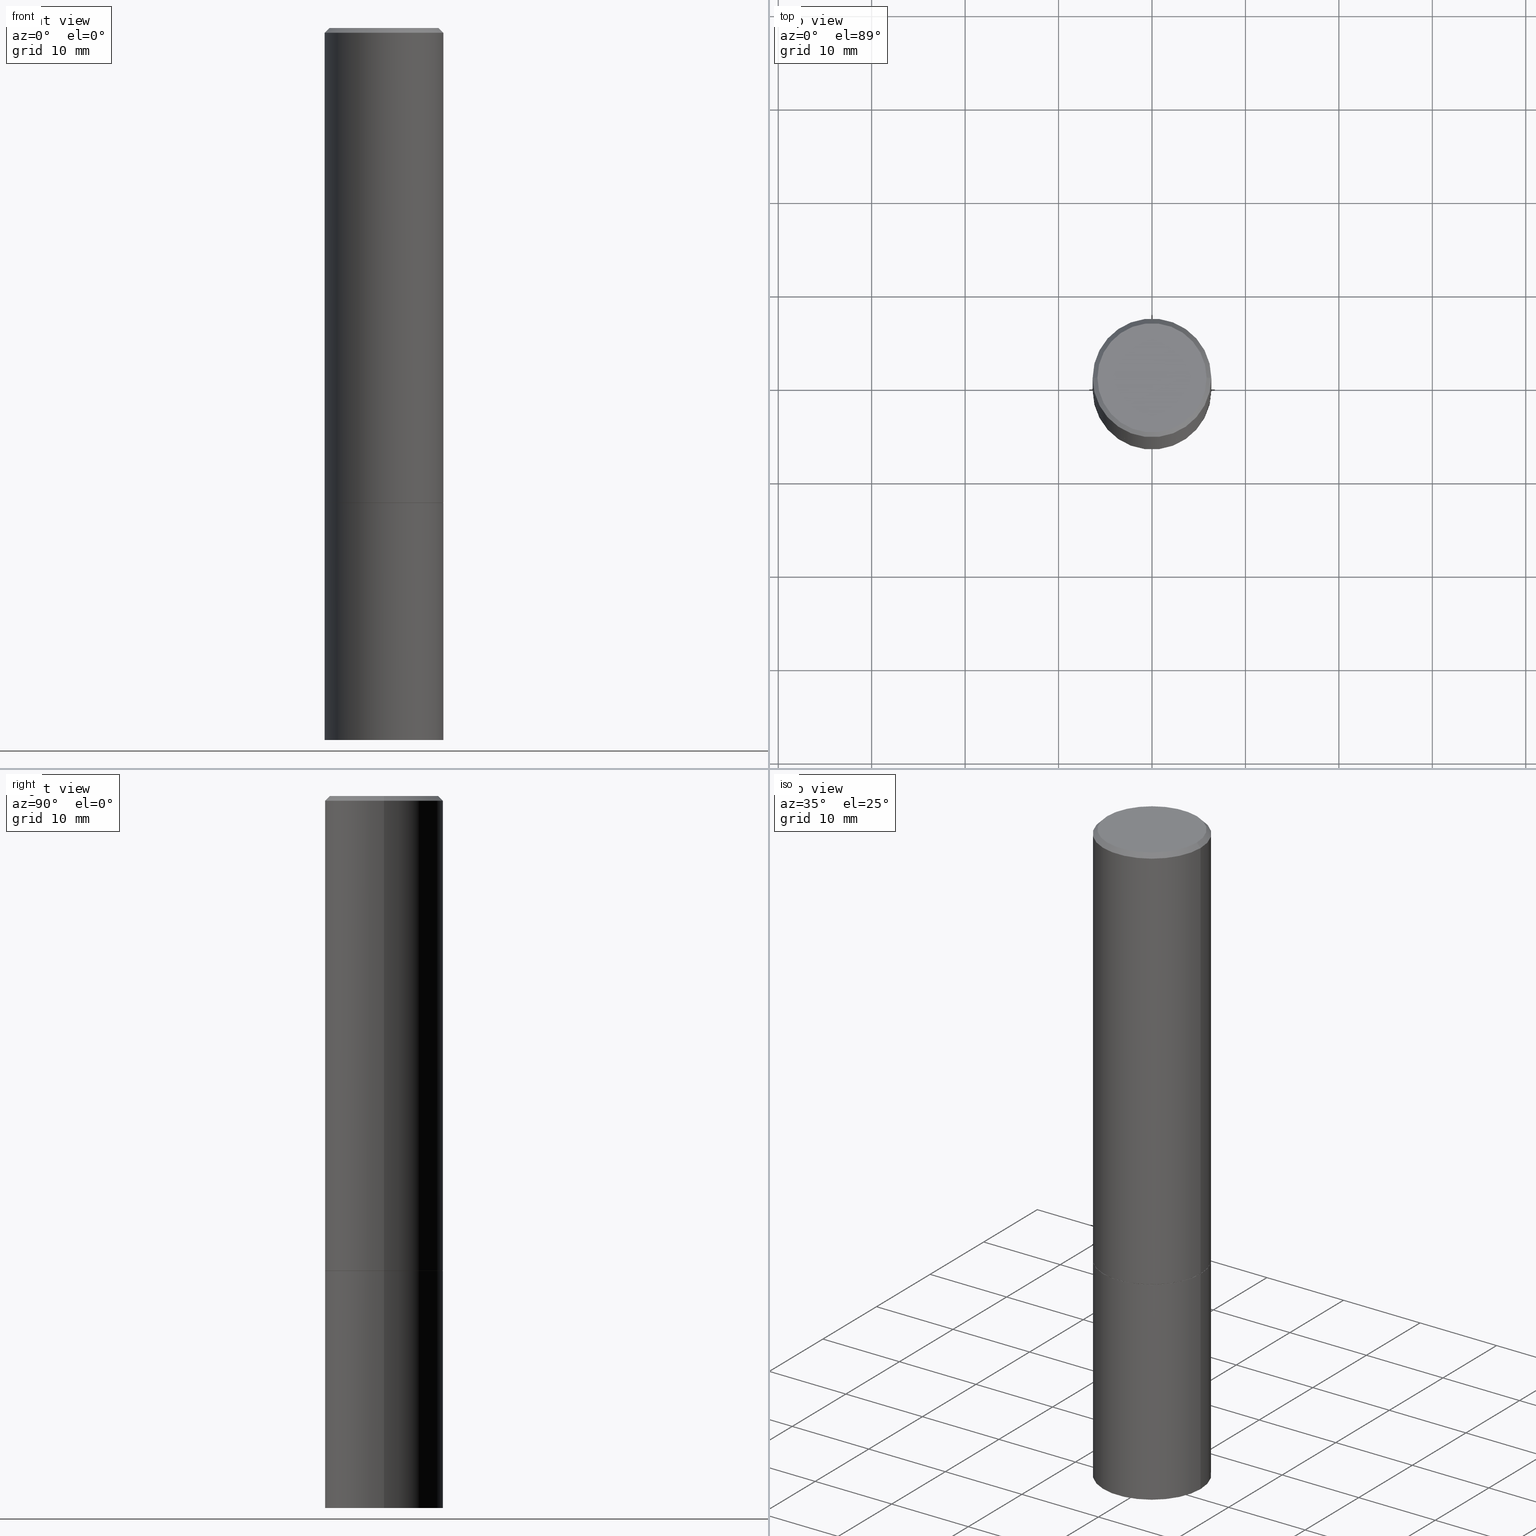
[diagram: canonical four-view strip — front | top / right | iso, engineering-drawing reading convention]
A machine part, canonical four-view strip (front | top / right | iso — engineering-drawing reading convention). The complete STEP part file that produces these views, byte-faithful:
ISO-10303-21;
HEADER;
FILE_DESCRIPTION (( 'STEP AP203' ),
    '1' );
FILE_NAME ('38513.STEP',
    '2024-02-27T23:11:34',
    ( '' ),
    ( '' ),
    'SwSTEP 2.0',
    'SolidWorks 2023',
    '' );
FILE_SCHEMA (( 'CONFIG_CONTROL_DESIGN' ));
ENDSEC;

DATA;
#1 = DIRECTION ( 'NONE',  ( 1.000000000000000000, -6.982962677686266711E-15, 4.876176775795935793E-29 ) ) ;
#2 = DIRECTION ( 'NONE',  ( -2.445468806185136877E-29, 3.491481338843145188E-15, 1.000000000000000000 ) ) ;
#3 = CIRCLE ( 'NONE', #194, 0.2500000000000000000 ) ;
#4 = CARTESIAN_POINT ( 'NONE',  ( 0.2500000000000000000, -8.725211865769015625E-15, -1.999000000000000110 ) ) ;
#5 = PRODUCT_DEFINITION_SHAPE ( 'NONE', 'NONE',  #158 ) ;
#6 = CARTESIAN_POINT ( 'NONE',  ( 0.2499999999999996947, -1.784954126219744217E-15, -0.02000000000000009756 ) ) ;
#7 = CARTESIAN_POINT ( 'NONE',  ( -0.2489999999999999991, -5.208412811295420884E-15, -2.000000000000000444 ) ) ;
#8 = ORIENTED_EDGE ( 'NONE', *, *, #275, .F. ) ;
#9 = MANIFOLD_SOLID_BREP ( 'Body-Move/Copy2[1]', #114 ) ;
#10 = DIRECTION ( 'NONE',  ( 1.000000000000000000, -6.982962677686262766E-15, 0.000000000000000000 ) ) ;
#11 = DIRECTION ( 'NONE',  ( 1.000000000000000000, -6.982962677686266711E-15, 0.000000000000000000 ) ) ;
#12 = PERSON_AND_ORGANIZATION_ROLE ( 'design_supplier' ) ;
#13 = ORIENTED_EDGE ( 'NONE', *, *, #253, .F. ) ;
#14 = CALENDAR_DATE ( 2024, 27, 2 ) ;
#15 = EDGE_LOOP ( 'NONE', ( #137, #242 ) ) ;
#16 = PERSON_AND_ORGANIZATION ( #181, #176 ) ;
#17 = ORIENTED_EDGE ( 'NONE', *, *, #111, .T. ) ;
#18 = COORDINATED_UNIVERSAL_TIME_OFFSET ( 5, 0, .BEHIND. ) ;
#19 = ORIENTED_EDGE ( 'NONE', *, *, #121, .F. ) ;
#20 = EDGE_CURVE ( 'NONE', #270, #74, #311, .T. ) ;
#21 = DIRECTION ( 'NONE',  ( -2.445468806185136597E-29, 3.491481338843145583E-15, 1.000000000000000000 ) ) ;
#22 = CLOSED_SHELL ( 'NONE', ( #288, #182, #88, #263, #55, #309, #116, #213 ) ) ;
#23 = CC_DESIGN_APPROVAL ( #362, ( #251 ) ) ;
#24 = DIRECTION ( 'NONE',  ( -2.445468806185136597E-29, 3.491481338843145583E-15, 1.000000000000000000 ) ) ;
#25 = CARTESIAN_POINT ( 'NONE',  ( 4.890937612370273754E-29, -6.982962677686291954E-15, -2.000000000000000444 ) ) ;
#26 = CARTESIAN_POINT ( 'NONE',  ( 0.2489999999999999991, -8.721720384430172617E-15, -2.000000000000000444 ) ) ;
#27 = CIRCLE ( 'NONE', #294, 0.2299999999999997047 ) ;
#28 = APPROVAL ( #350, 'UNSPECIFIED' ) ;
#29 = CARTESIAN_POINT ( 'NONE',  ( 1.745740669421639647E-15, 0.2499999999999895084, -3.000000000000001332 ) ) ;
#30 = LENGTH_MEASURE_WITH_UNIT ( LENGTH_MEASURE( 0.02539999999999999897 ), #266 );
#31 = CARTESIAN_POINT ( 'NONE',  ( 0.2500000000000000000, -1.222018468595100303E-14, -3.000000000000000444 ) ) ;
#32 = AXIS2_PLACEMENT_3D ( 'NONE', #70, #68, #102 ) ;
#33 = LOCAL_TIME ( 18, 11, 34.00000000000000000, #131 ) ;
#34 = CARTESIAN_POINT ( 'NONE',  ( 4.890937612370273754E-29, -6.982962677686291954E-15, -2.000000000000000444 ) ) ;
#35 = DESIGN_CONTEXT ( 'detailed design', #355, 'design' ) ;
#36 = DIRECTION ( 'NONE',  ( -2.445468806185136597E-29, 3.491481338843145583E-15, 1.000000000000000000 ) ) ;
#37 = CARTESIAN_POINT ( 'NONE',  ( 4.890937612370273754E-29, -6.982962677686291954E-15, -2.000000000000000444 ) ) ;
#38 = ORIENTED_EDGE ( 'NONE', *, *, #224, .T. ) ;
#39 = CIRCLE ( 'NONE', #323, 0.2500000000000000000 ) ;
#40 = APPROVAL_PERSON_ORGANIZATION ( #46, #28, #297 ) ;
#41 = PERSON_AND_ORGANIZATION ( #181, #176 ) ;
#42 = ORIENTED_EDGE ( 'NONE', *, *, #20, .F. ) ;
#43 = EDGE_CURVE ( 'NONE', #125, #349, #145, .T. ) ;
#44 = PERSON_AND_ORGANIZATION ( #181, #176 ) ;
#45 = ORIENTED_EDGE ( 'NONE', *, *, #111, .F. ) ;
#46 = PERSON_AND_ORGANIZATION ( #181, #176 ) ;
#47 = ORIENTED_EDGE ( 'NONE', *, *, #50, .F. ) ;
#48 = AXIS2_PLACEMENT_3D ( 'NONE', #174, #257, #337 ) ;
#49 = DATE_AND_TIME ( #299, #172 ) ;
#50 = EDGE_CURVE ( 'NONE', #296, #71, #54, .T. ) ;
#51 = EDGE_LOOP ( 'NONE', ( #100, #300, #354, #188 ) ) ;
#52 = ORIENTED_EDGE ( 'NONE', *, *, #50, .T. ) ;
#53 = DIRECTION ( 'NONE',  ( 0.7071067811865232589, -2.468850131082003836E-15, 0.7071067811865715536 ) ) ;
#54 = CIRCLE ( 'NONE', #243, 0.2299999999999997047 ) ;
#55 = ADVANCED_FACE ( 'NONE', ( #79 ), #113, .T. ) ;
#56 = CARTESIAN_POINT ( 'NONE',  ( 4.890937612370273754E-29, -6.982962677686291954E-15, -2.000000000000000444 ) ) ;
#57 = FACE_OUTER_BOUND ( 'NONE', #154, .T. ) ;
#58 = DIRECTION ( 'NONE',  ( 2.438088387897960049E-29, -3.491481338843145188E-15, -1.000000000000000000 ) ) ;
#59 = CARTESIAN_POINT ( 'NONE',  ( 4.888492143564088712E-29, -6.979471196347448158E-15, -1.999000000000000110 ) ) ;
#60 = DIRECTION ( 'NONE',  ( 2.438088387897960049E-29, -3.491481338843145188E-15, -1.000000000000000000 ) ) ;
#61 = CC_DESIGN_PERSON_AND_ORGANIZATION_ASSIGNMENT ( #269, #12, ( #97 ) ) ;
#62 = PRODUCT ( '38513', '38513', '', ( #295 ) ) ;
#63 = DIRECTION ( 'NONE',  ( 0.7071067811865461294, -7.319954787623251312E-15, -0.7071067811865489050 ) ) ;
#64 = AXIS2_PLACEMENT_3D ( 'NONE', #59, #173, #89 ) ;
#65 = FACE_OUTER_BOUND ( 'NONE', #81, .T. ) ;
#66 = FACE_OUTER_BOUND ( 'NONE', #191, .T. ) ;
#67 = ORIENTED_EDGE ( 'NONE', *, *, #159, .F. ) ;
#68 = DIRECTION ( 'NONE',  ( 0.000000000000000000, 0.000000000000000000, 1.000000000000000000 ) ) ;
#69 = CIRCLE ( 'NONE', #64, 0.2500000000000000000 ) ;
#70 = CARTESIAN_POINT ( 'NONE',  ( 0.000000000000000000, 0.000000000000000000, 0.000000000000000000 ) ) ;
#71 = VERTEX_POINT ( 'NONE', #226 ) ;
#72 = ADVANCED_FACE ( 'NONE', ( #222 ), #361, .T. ) ;
#73 = APPROVAL_STATUS ( 'not_yet_approved' ) ;
#74 = VERTEX_POINT ( 'NONE', #333 ) ;
#75 = APPLICATION_PROTOCOL_DEFINITION ( 'international standard', 'config_control_design', 1994, #355 ) ;
#76 = CARTESIAN_POINT ( 'NONE',  ( 7.306959900346538153E-46, -1.043240219266313067E-31, -2.987958743070287587E-17 ) ) ;
#77 = EDGE_CURVE ( 'NONE', #331, #302, #164, .T. ) ;
#78 = APPROVAL_ROLE ( '' ) ;
#79 = FACE_OUTER_BOUND ( 'NONE', #351, .T. ) ;
#80 = CIRCLE ( 'NONE', #236, 0.2499999999999996947 ) ;
#81 = EDGE_LOOP ( 'NONE', ( #52, #356 ) ) ;
#82 = APPLICATION_CONTEXT ( 'configuration controlled 3d designs of mechanical parts and assemblies' ) ;
#83 = DIRECTION ( 'NONE',  ( -2.438088387897960049E-29, 3.491481338843145188E-15, 1.000000000000000000 ) ) ;
#84 = CARTESIAN_POINT ( 'NONE',  ( 4.890937612370297681E-31, -6.982962677686324889E-17, -0.02000000000000009756 ) ) ;
#85 = AXIS2_PLACEMENT_3D ( 'NONE', #56, #171, #335 ) ;
#86 = CARTESIAN_POINT ( 'NONE',  ( -0.2489999999999999991, -5.213711265643642498E-15, -2.000000000000000444 ) ) ;
#87 = DIRECTION ( 'NONE',  ( -2.445468806185136597E-29, 3.491481338843145583E-15, 1.000000000000000000 ) ) ;
#88 = ADVANCED_FACE ( 'NONE', ( #57 ), #334, .T. ) ;
#89 = DIRECTION ( 'NONE',  ( 1.000000000000000000, -6.982962677686266711E-15, 0.000000000000000000 ) ) ;
#90 = AXIS2_PLACEMENT_3D ( 'NONE', #37, #36, #93 ) ;
#91 = AXIS2_PLACEMENT_3D ( 'NONE', #314, #60, #119 ) ;
#92 = CC_DESIGN_DATE_AND_TIME_ASSIGNMENT ( #216, #165, ( #158 ) ) ;
#93 = DIRECTION ( 'NONE',  ( 1.000000000000000000, -6.982962677686266711E-15, 0.000000000000000000 ) ) ;
#94 = LINE ( 'NONE', #232, #170 ) ;
#95 = DIRECTION ( 'NONE',  ( -2.445468806185136597E-29, 3.491481338843145583E-15, 1.000000000000000000 ) ) ;
#96 = AXIS2_PLACEMENT_3D ( 'NONE', #115, #87, #1 ) ;
#97 = PRODUCT_DEFINITION_FORMATION_WITH_SPECIFIED_SOURCE ( 'ANY', '', #62, .NOT_KNOWN. ) ;
#98 = DIRECTION ( 'NONE',  ( -2.445468806185136597E-29, 3.491481338843145583E-15, 1.000000000000000000 ) ) ;
#99 = DATE_AND_TIME ( #271, #324 ) ;
#100 = ORIENTED_EDGE ( 'NONE', *, *, #210, .F. ) ;
#101 = AXIS2_PLACEMENT_3D ( 'NONE', #117, #332, #259 ) ;
#102 = DIRECTION ( 'NONE',  ( 1.000000000000000000, 0.000000000000000000, 0.000000000000000000 ) ) ;
#103 = LOCAL_TIME ( 18, 11, 34.00000000000000000, #18 ) ;
#104 = ORIENTED_EDGE ( 'NONE', *, *, #121, .T. ) ;
#105 = SHAPE_DEFINITION_REPRESENTATION ( #5, #167 ) ;
#106 = ORIENTED_EDGE ( 'NONE', *, *, #161, .F. ) ;
#107 = DIRECTION ( 'NONE',  ( -2.445468806185136597E-29, 3.491481338843145583E-15, 1.000000000000000000 ) ) ;
#108 = ORIENTED_EDGE ( 'NONE', *, *, #128, .F. ) ;
#109 = AXIS2_PLACEMENT_3D ( 'NONE', #199, #364, #201 ) ;
#110 = DIRECTION ( 'NONE',  ( -2.445468806185136597E-29, 3.491481338843145583E-15, 1.000000000000000000 ) ) ;
#111 = EDGE_CURVE ( 'NONE', #160, #219, #227, .T. ) ;
#112 = DIRECTION ( 'NONE',  ( -2.445468806185136597E-29, 3.491481338843145583E-15, 1.000000000000000000 ) ) ;
#113 = CYLINDRICAL_SURFACE ( 'NONE', #155, 0.2499999999999998612 ) ;
#114 = CLOSED_SHELL ( 'NONE', ( #197, #72, #240, #189 ) ) ;
#115 = CARTESIAN_POINT ( 'NONE',  ( 0.000000000000000000, 0.000000000000000000, 0.000000000000000000 ) ) ;
#116 = ADVANCED_FACE ( 'NONE', ( #202 ), #252, .F. ) ;
#117 = CARTESIAN_POINT ( 'NONE',  ( 4.890937612370297681E-31, -6.982962677686324889E-17, -0.02000000000000009756 ) ) ;
#118 = EDGE_CURVE ( 'NONE', #169, #219, #126, .T. ) ;
#119 = DIRECTION ( 'NONE',  ( -1.000000000000000000, 6.982962677686265922E-15, -4.876176775795935793E-29 ) ) ;
#120 = AXIS2_PLACEMENT_3D ( 'NONE', #264, #95, #315 ) ;
#121 = EDGE_CURVE ( 'NONE', #160, #239, #39, .T. ) ;
#122 = FACE_OUTER_BOUND ( 'NONE', #326, .T. ) ;
#123 = PLANE ( 'NONE',  #249 ) ;
#124 = CARTESIAN_POINT ( 'NONE',  ( 7.306959900346538153E-46, -1.043240219266313067E-31, -2.987958743070287587E-17 ) ) ;
#125 = VERTEX_POINT ( 'NONE', #26 ) ;
#126 = CIRCLE ( 'NONE', #109, 0.2499999999999996947 ) ;
#127 = CARTESIAN_POINT ( 'NONE',  ( 0.2500000000000000000, -1.745740669421566678E-15, 1.219044193948983948E-29 ) ) ;
#128 = EDGE_CURVE ( 'NONE', #125, #239, #255, .T. ) ;
#129 = COORDINATED_UNIVERSAL_TIME_OFFSET ( 5, 0, .BEHIND. ) ;
#130 = DIRECTION ( 'NONE',  ( -2.445468806185136597E-29, 3.491481338843145583E-15, 1.000000000000000000 ) ) ;
#131 = COORDINATED_UNIVERSAL_TIME_OFFSET ( 5, 0, .BEHIND. ) ;
#132 = ORIENTED_EDGE ( 'NONE', *, *, #344, .F. ) ;
#133 = DATE_AND_TIME ( #14, #103 ) ;
#134 = DIRECTION ( 'NONE',  ( 1.000000000000000000, -6.982962677686266711E-15, 0.000000000000000000 ) ) ;
#135 = ORIENTED_EDGE ( 'NONE', *, *, #185, .T. ) ;
#136 = CC_DESIGN_PERSON_AND_ORGANIZATION_ASSIGNMENT ( #41, #192, ( #158 ) ) ;
#137 = ORIENTED_EDGE ( 'NONE', *, *, #43, .F. ) ;
#138 =( GEOMETRIC_REPRESENTATION_CONTEXT ( 3 ) GLOBAL_UNCERTAINTY_ASSIGNED_CONTEXT ( ( #206 ) ) GLOBAL_UNIT_ASSIGNED_CONTEXT ( ( #262, #260, #327 ) ) REPRESENTATION_CONTEXT ( 'NONE', 'WORKASPACE' ) );
#139 = DIRECTION ( 'NONE',  ( -2.445468806185136597E-29, 3.491481338843145583E-15, 1.000000000000000000 ) ) ;
#140 = LOCAL_TIME ( 18, 11, 34.00000000000000000, #238 ) ;
#141 = EDGE_CURVE ( 'NONE', #74, #270, #256, .T. ) ;
#142 = CARTESIAN_POINT ( 'NONE',  ( -0.2499999999999998612, 1.776356839400249479E-15, -1.229733772563725745E-29 ) ) ;
#143 = CARTESIAN_POINT ( 'NONE',  ( 4.888492143564088712E-29, -6.979471196347448158E-15, -1.999000000000000110 ) ) ;
#144 = CARTESIAN_POINT ( 'NONE',  ( 0.000000000000000000, 0.000000000000000000, 0.000000000000000000 ) ) ;
#145 = CIRCLE ( 'NONE', #359, 0.2489999999999999991 ) ;
#146 = LINE ( 'NONE', #86, #250 ) ;
#147 = PLANE ( 'NONE',  #91 ) ;
#148 = AXIS2_PLACEMENT_3D ( 'NONE', #237, #233, #179 ) ;
#149 = CARTESIAN_POINT ( 'NONE',  ( -0.2500000000000000000, 1.776356839400250465E-15, -1.229733772563726445E-29 ) ) ;
#150 = CC_DESIGN_DATE_AND_TIME_ASSIGNMENT ( #325, #157, ( #251 ) ) ;
#151 = CARTESIAN_POINT ( 'NONE',  ( -0.2500000000000000000, -6.952346507707613689E-15, -3.000000000000000444 ) ) ;
#152 = ORIENTED_EDGE ( 'NONE', *, *, #234, .F. ) ;
#153 = CARTESIAN_POINT ( 'NONE',  ( 0.2499999999999998612, -1.745740669421565692E-15, 1.219044193948983248E-29 ) ) ;
#154 = EDGE_LOOP ( 'NONE', ( #235, #168, #358, #152 ) ) ;
#155 = AXIS2_PLACEMENT_3D ( 'NONE', #144, #110, #310 ) ;
#156 = APPROVAL_PERSON_ORGANIZATION ( #187, #341, #78 ) ;
#157 = DATE_TIME_ROLE ( 'classification_date' ) ;
#158 = PRODUCT_DEFINITION ( 'UNKNOWN', '', #97, #35 ) ;
#159 = EDGE_CURVE ( 'NONE', #349, #160, #146, .T. ) ;
#160 = VERTEX_POINT ( 'NONE', #282 ) ;
#161 = EDGE_CURVE ( 'NONE', #219, #169, #80, .T. ) ;
#162 = PERSON_AND_ORGANIZATION_ROLE ( 'design_owner' ) ;
#163 = ORIENTED_EDGE ( 'NONE', *, *, #20, .T. ) ;
#164 = CIRCLE ( 'NONE', #48, 0.2500000000000000000 ) ;
#165 = DATE_TIME_ROLE ( 'creation_date' ) ;
#166 = CARTESIAN_POINT ( 'NONE',  ( 4.890937612370273754E-29, -6.982962677686291954E-15, -2.000000000000000444 ) ) ;
#167 = ADVANCED_BREP_SHAPE_REPRESENTATION ( '38513', ( #9, #258, #32 ), #138 ) ;
#168 = ORIENTED_EDGE ( 'NONE', *, *, #253, .T. ) ;
#169 = VERTEX_POINT ( 'NONE', #363 ) ;
#170 = VECTOR ( 'NONE', #339, 39.37007874015748143 ) ;
#171 = DIRECTION ( 'NONE',  ( -2.445468806185136597E-29, 3.491481338843145583E-15, 1.000000000000000000 ) ) ;
#172 = LOCAL_TIME ( 18, 11, 34.00000000000000000, #301 ) ;
#173 = DIRECTION ( 'NONE',  ( -2.445468806185136597E-29, 3.491481338843145583E-15, 1.000000000000000000 ) ) ;
#174 = CARTESIAN_POINT ( 'NONE',  ( 7.336406418555409790E-29, -1.047444401652943635E-14, -3.000000000000000444 ) ) ;
#175 = DIRECTION ( 'NONE',  ( -2.445468806185136877E-29, 3.491481338843145188E-15, 1.000000000000000000 ) ) ;
#176 = ORGANIZATION ( 'UNSPECIFIED', 'UNSPECIFIED', '' ) ;
#177 = DIRECTION ( 'NONE',  ( -2.445468806185136597E-29, 3.491481338843145583E-15, 1.000000000000000000 ) ) ;
#178 = LINE ( 'NONE', #153, #215 ) ;
#179 = DIRECTION ( 'NONE',  ( -1.000000000000000000, 6.982962677686266711E-15, 0.000000000000000000 ) ) ;
#180 = DIRECTION ( 'NONE',  ( 2.438088387897960049E-29, -3.491481338843145188E-15, -1.000000000000000000 ) ) ;
#181 = PERSON ( 'UNSPECIFIED', 'UNSPECIFIED', 'UNSPECIFIED', ('UNSPECIFIED'), ('UNSPECIFIED'), ('UNSPECIFIED') ) ;
#182 = ADVANCED_FACE ( 'NONE', ( #203 ), #200, .T. ) ;
#183 = CARTESIAN_POINT ( 'NONE',  ( 0.2500000000000000000, -8.728703347107858632E-15, -2.000000000000000444 ) ) ;
#184 = ORIENTED_EDGE ( 'NONE', *, *, #344, .T. ) ;
#185 = EDGE_CURVE ( 'NONE', #239, #160, #69, .T. ) ;
#186 = VECTOR ( 'NONE', #53, 39.37007874015748854 ) ;
#187 = PERSON_AND_ORGANIZATION ( #181, #176 ) ;
#188 = ORIENTED_EDGE ( 'NONE', *, *, #141, .F. ) ;
#189 = ADVANCED_FACE ( 'NONE', ( #283 ), #285, .T. ) ;
#190 = APPLICATION_PROTOCOL_DEFINITION ( 'international standard', 'config_control_design', 1994, #82 ) ;
#191 = EDGE_LOOP ( 'NONE', ( #248, #298, #214, #108 ) ) ;
#192 = PERSON_AND_ORGANIZATION_ROLE ( 'creator' ) ;
#193 = DIRECTION ( 'NONE',  ( -2.445468806185136597E-29, 3.491481338843145583E-15, 1.000000000000000000 ) ) ;
#194 = AXIS2_PLACEMENT_3D ( 'NONE', #212, #265, #10 ) ;
#195 = CALENDAR_DATE ( 2024, 27, 2 ) ;
#196 = EDGE_LOOP ( 'NONE', ( #13, #47, #304, #217 ) ) ;
#197 = ADVANCED_FACE ( 'NONE', ( #228 ), #312, .T. ) ;
#198 = ORIENTED_EDGE ( 'NONE', *, *, #319, .T. ) ;
#199 = CARTESIAN_POINT ( 'NONE',  ( 4.890937612370297681E-31, -6.982962677686324889E-17, -0.02000000000000009756 ) ) ;
#200 = CYLINDRICAL_SURFACE ( 'NONE', #286, 0.2499999999999998612 ) ;
#201 = DIRECTION ( 'NONE',  ( 1.000000000000000000, -6.982962677686266711E-15, 0.000000000000000000 ) ) ;
#202 = FACE_OUTER_BOUND ( 'NONE', #15, .T. ) ;
#203 = FACE_OUTER_BOUND ( 'NONE', #245, .T. ) ;
#204 = AXIS2_PLACEMENT_3D ( 'NONE', #29, #58, #223 ) ;
#205 = FACE_OUTER_BOUND ( 'NONE', #272, .T. ) ;
#206 = UNCERTAINTY_MEASURE_WITH_UNIT (LENGTH_MEASURE( 1.000000000000000082E-05 ), #262, 'distance_accuracy_value', 'NONE');
#207 = DIRECTION ( 'NONE',  ( -1.000000000000000000, 6.982962677686265922E-15, -4.876176775795935793E-29 ) ) ;
#208 = DIRECTION ( 'NONE',  ( -2.445468806185136877E-29, 3.491481338843145188E-15, 1.000000000000000000 ) ) ;
#209 = CONICAL_SURFACE ( 'NONE', #148, 0.2499999999999996947, 0.7853981633974463916 ) ;
#210 = EDGE_CURVE ( 'NONE', #331, #74, #342, .T. ) ;
#211 = EDGE_LOOP ( 'NONE', ( #184, #221, #42, #8 ) ) ;
#212 = CARTESIAN_POINT ( 'NONE',  ( 7.336406418555409790E-29, -1.047444401652943635E-14, -3.000000000000000444 ) ) ;
#213 = ADVANCED_FACE ( 'NONE', ( #65 ), #147, .F. ) ;
#214 = ORIENTED_EDGE ( 'NONE', *, *, #185, .F. ) ;
#215 = VECTOR ( 'NONE', #208, 39.37007874015748143 ) ;
#216 = DATE_AND_TIME ( #195, #140 ) ;
#217 = ORIENTED_EDGE ( 'NONE', *, *, #161, .T. ) ;
#218 = PERSON_AND_ORGANIZATION ( #181, #176 ) ;
#219 = VERTEX_POINT ( 'NONE', #290 ) ;
#220 = DIRECTION ( 'NONE',  ( 1.000000000000000000, -6.982962677686266711E-15, 4.875813741439105940E-29 ) ) ;
#221 = ORIENTED_EDGE ( 'NONE', *, *, #210, .T. ) ;
#222 = FACE_OUTER_BOUND ( 'NONE', #276, .T. ) ;
#223 = DIRECTION ( 'NONE',  ( -1.000000000000000000, 6.982962677686265922E-15, -4.876176775795935793E-29 ) ) ;
#224 = EDGE_CURVE ( 'NONE', #349, #125, #280, .T. ) ;
#225 = AXIS2_PLACEMENT_3D ( 'NONE', #25, #83, #336 ) ;
#226 = CARTESIAN_POINT ( 'NONE',  ( 0.2299999999999997047, -1.681434332853597236E-15, -2.987958743069138192E-17 ) ) ;
#227 = LINE ( 'NONE', #142, #365 ) ;
#228 = FACE_OUTER_BOUND ( 'NONE', #211, .T. ) ;
#229 = CARTESIAN_POINT ( 'NONE',  ( 1.745740669421615390E-15, 0.2499999999999930334, -2.000000000000000888 ) ) ;
#230 = AXIS2_PLACEMENT_3D ( 'NONE', #330, #107, #11 ) ;
#231 = APPROVAL_PERSON_ORGANIZATION ( #16, #362, #277 ) ;
#232 = CARTESIAN_POINT ( 'NONE',  ( -0.2499999999999996947, 1.675911042644701210E-15, -0.02000000000000009756 ) ) ;
#233 = DIRECTION ( 'NONE',  ( 2.445468806185136597E-29, -3.491481338843145583E-15, -1.000000000000000000 ) ) ;
#234 = EDGE_CURVE ( 'NONE', #296, #219, #94, .T. ) ;
#235 = ORIENTED_EDGE ( 'NONE', *, *, #360, .F. ) ;
#236 = AXIS2_PLACEMENT_3D ( 'NONE', #84, #24, #366 ) ;
#237 = CARTESIAN_POINT ( 'NONE',  ( 4.890937612370297681E-31, -6.982962677686324889E-17, -0.02000000000000009756 ) ) ;
#238 = COORDINATED_UNIVERSAL_TIME_OFFSET ( 5, 0, .BEHIND. ) ;
#239 = VERTEX_POINT ( 'NONE', #4 ) ;
#240 = ADVANCED_FACE ( 'NONE', ( #122 ), #123, .F. ) ;
#241 = CALENDAR_DATE ( 2024, 27, 2 ) ;
#242 = ORIENTED_EDGE ( 'NONE', *, *, #224, .F. ) ;
#243 = AXIS2_PLACEMENT_3D ( 'NONE', #76, #193, #220 ) ;
#244 = APPROVAL_DATE_TIME ( #133, #362 ) ;
#245 = EDGE_LOOP ( 'NONE', ( #135, #17, #328, #278 ) ) ;
#246 = ORIENTED_EDGE ( 'NONE', *, *, #141, .T. ) ;
#247 = PERSON_AND_ORGANIZATION_ROLE ( 'classification_officer' ) ;
#248 = ORIENTED_EDGE ( 'NONE', *, *, #43, .T. ) ;
#249 = AXIS2_PLACEMENT_3D ( 'NONE', #229, #180, #207 ) ;
#250 = VECTOR ( 'NONE', #254, 39.37007874015748854 ) ;
#251 = SECURITY_CLASSIFICATION ( '', '', #274 ) ;
#252 = PLANE ( 'NONE',  #225 ) ;
#253 = EDGE_CURVE ( 'NONE', #71, #169, #338, .T. ) ;
#254 = DIRECTION ( 'NONE',  ( -0.7071067811865232589, 7.493145998870265808E-15, 0.7071067811865715536 ) ) ;
#255 = LINE ( 'NONE', #287, #186 ) ;
#256 = CIRCLE ( 'NONE', #85, 0.2500000000000000000 ) ;
#257 = DIRECTION ( 'NONE',  ( -2.445468806185136597E-29, 3.491481338843145583E-15, 1.000000000000000000 ) ) ;
#258 = MANIFOLD_SOLID_BREP ( 'Body-Move/Copy2[2]', #22 ) ;
#259 = DIRECTION ( 'NONE',  ( -1.000000000000000000, 6.982962677686266711E-15, 0.000000000000000000 ) ) ;
#260 =( NAMED_UNIT ( * ) PLANE_ANGLE_UNIT ( ) SI_UNIT ( $, .RADIAN. ) );
#261 = CC_DESIGN_PERSON_AND_ORGANIZATION_ASSIGNMENT ( #44, #357, ( #97 ) ) ;
#262 =( CONVERSION_BASED_UNIT ( 'INCH', #30 ) LENGTH_UNIT ( ) NAMED_UNIT ( #347 ) );
#263 = ADVANCED_FACE ( 'NONE', ( #292 ), #209, .T. ) ;
#264 = CARTESIAN_POINT ( 'NONE',  ( 4.890937612370273754E-29, -6.982962677686291954E-15, -2.000000000000000444 ) ) ;
#265 = DIRECTION ( 'NONE',  ( -2.445468806185136597E-29, 3.491481338843145583E-15, 1.000000000000000000 ) ) ;
#266 =( LENGTH_UNIT ( ) NAMED_UNIT ( * ) SI_UNIT ( $, .METRE. ) );
#267 = ORIENTED_EDGE ( 'NONE', *, *, #77, .F. ) ;
#268 = AXIS2_PLACEMENT_3D ( 'NONE', #279, #21, #316 ) ;
#269 = PERSON_AND_ORGANIZATION ( #181, #176 ) ;
#270 = VERTEX_POINT ( 'NONE', #183 ) ;
#271 = CALENDAR_DATE ( 2024, 27, 2 ) ;
#272 = EDGE_LOOP ( 'NONE', ( #67, #38, #322, #19 ) ) ;
#273 = VECTOR ( 'NONE', #2, 39.37007874015748143 ) ;
#274 = SECURITY_CLASSIFICATION_LEVEL ( 'unclassified' ) ;
#275 = EDGE_CURVE ( 'NONE', #302, #270, #340, .T. ) ;
#276 = EDGE_LOOP ( 'NONE', ( #132, #267 ) ) ;
#277 = APPROVAL_ROLE ( '' ) ;
#278 = ORIENTED_EDGE ( 'NONE', *, *, #319, .F. ) ;
#279 = CARTESIAN_POINT ( 'NONE',  ( 0.000000000000000000, 0.000000000000000000, 0.000000000000000000 ) ) ;
#280 = CIRCLE ( 'NONE', #120, 0.2489999999999999991 ) ;
#281 = CC_DESIGN_SECURITY_CLASSIFICATION ( #251, ( #97 ) ) ;
#282 = CARTESIAN_POINT ( 'NONE',  ( -0.2499999999999999722, -1.748293572161904475E-15, -1.999000000000000110 ) ) ;
#283 = FACE_OUTER_BOUND ( 'NONE', #51, .T. ) ;
#284 = PRODUCT_RELATED_PRODUCT_CATEGORY ( 'detail', '', ( #62 ) ) ;
#285 = CYLINDRICAL_SURFACE ( 'NONE', #96, 0.2500000000000000000 ) ;
#286 = AXIS2_PLACEMENT_3D ( 'NONE', #308, #112, #307 ) ;
#287 = CARTESIAN_POINT ( 'NONE',  ( 0.2489999999999999991, -8.721720384430172617E-15, -2.000000000000000444 ) ) ;
#288 = ADVANCED_FACE ( 'NONE', ( #66 ), #317, .T. ) ;
#289 = DIRECTION ( 'NONE',  ( 1.000000000000000000, -6.982962677686266711E-15, 4.875813741439105940E-29 ) ) ;
#290 = CARTESIAN_POINT ( 'NONE',  ( -0.2499999999999996947, 1.675911042644701210E-15, -0.02000000000000009756 ) ) ;
#291 = VECTOR ( 'NONE', #63, 39.37007874015748143 ) ;
#292 = FACE_OUTER_BOUND ( 'NONE', #196, .T. ) ;
#293 = DIRECTION ( 'NONE',  ( -2.445468806185136877E-29, 3.491481338843145188E-15, 1.000000000000000000 ) ) ;
#294 = AXIS2_PLACEMENT_3D ( 'NONE', #124, #177, #289 ) ;
#295 = MECHANICAL_CONTEXT ( 'NONE', #82, 'mechanical' ) ;
#296 = VERTEX_POINT ( 'NONE', #345 ) ;
#297 = APPROVAL_ROLE ( '' ) ;
#298 = ORIENTED_EDGE ( 'NONE', *, *, #159, .T. ) ;
#299 = CALENDAR_DATE ( 2024, 27, 2 ) ;
#300 = ORIENTED_EDGE ( 'NONE', *, *, #77, .T. ) ;
#301 = COORDINATED_UNIVERSAL_TIME_OFFSET ( 5, 0, .BEHIND. ) ;
#302 = VERTEX_POINT ( 'NONE', #31 ) ;
#303 = CC_DESIGN_PERSON_AND_ORGANIZATION_ASSIGNMENT ( #218, #247, ( #251 ) ) ;
#304 = ORIENTED_EDGE ( 'NONE', *, *, #234, .T. ) ;
#305 = DIRECTION ( 'NONE',  ( 1.000000000000000000, -6.982962677686266711E-15, 0.000000000000000000 ) ) ;
#306 = VECTOR ( 'NONE', #293, 39.37007874015748143 ) ;
#307 = DIRECTION ( 'NONE',  ( 1.000000000000000000, -6.982962677686266711E-15, 4.876176775795935793E-29 ) ) ;
#308 = CARTESIAN_POINT ( 'NONE',  ( 0.000000000000000000, 0.000000000000000000, 0.000000000000000000 ) ) ;
#309 = ADVANCED_FACE ( 'NONE', ( #205 ), #343, .T. ) ;
#310 = DIRECTION ( 'NONE',  ( 1.000000000000000000, -6.982962677686266711E-15, 4.876176775795935793E-29 ) ) ;
#311 = CIRCLE ( 'NONE', #230, 0.2500000000000000000 ) ;
#312 = CYLINDRICAL_SURFACE ( 'NONE', #268, 0.2500000000000000000 ) ;
#313 = CC_DESIGN_APPROVAL ( #28, ( #97 ) ) ;
#314 = CARTESIAN_POINT ( 'NONE',  ( 1.606081415867839095E-15, 0.2299999999999997047, -8.179805016492739006E-16 ) ) ;
#315 = DIRECTION ( 'NONE',  ( 1.000000000000000000, -6.982962677686266711E-15, 0.000000000000000000 ) ) ;
#316 = DIRECTION ( 'NONE',  ( 1.000000000000000000, -6.982962677686266711E-15, 4.876176775795935793E-29 ) ) ;
#317 = CONICAL_SURFACE ( 'NONE', #90, 0.2489999999999999991, 0.7853981633974141952 ) ;
#318 = CC_DESIGN_APPROVAL ( #341, ( #158 ) ) ;
#319 = EDGE_CURVE ( 'NONE', #239, #169, #178, .T. ) ;
#320 = DIRECTION ( 'NONE',  ( 1.000000000000000000, -6.982962677686266711E-15, 0.000000000000000000 ) ) ;
#321 = APPROVAL_DATE_TIME ( #49, #28 ) ;
#322 = ORIENTED_EDGE ( 'NONE', *, *, #128, .T. ) ;
#323 = AXIS2_PLACEMENT_3D ( 'NONE', #143, #139, #305 ) ;
#324 = LOCAL_TIME ( 18, 11, 34.00000000000000000, #129 ) ;
#325 = DATE_AND_TIME ( #241, #33 ) ;
#326 = EDGE_LOOP ( 'NONE', ( #163, #246 ) ) ;
#327 =( NAMED_UNIT ( * ) SI_UNIT ( $, .STERADIAN. ) SOLID_ANGLE_UNIT ( ) );
#328 = ORIENTED_EDGE ( 'NONE', *, *, #118, .F. ) ;
#329 = APPROVAL_STATUS ( 'not_yet_approved' ) ;
#330 = CARTESIAN_POINT ( 'NONE',  ( 4.890937612370273754E-29, -6.982962677686291954E-15, -2.000000000000000444 ) ) ;
#331 = VERTEX_POINT ( 'NONE', #151 ) ;
#332 = DIRECTION ( 'NONE',  ( 2.445468806185136597E-29, -3.491481338843145583E-15, -1.000000000000000000 ) ) ;
#333 = CARTESIAN_POINT ( 'NONE',  ( -0.2500000000000000000, -6.952346507707613689E-15, -2.000000000000000444 ) ) ;
#334 = CONICAL_SURFACE ( 'NONE', #101, 0.2499999999999996947, 0.7853981633974463916 ) ;
#335 = DIRECTION ( 'NONE',  ( 1.000000000000000000, -6.982962677686266711E-15, 0.000000000000000000 ) ) ;
#336 = DIRECTION ( 'NONE',  ( 1.000000000000000000, -6.982962677686265922E-15, 4.876176775795935793E-29 ) ) ;
#337 = DIRECTION ( 'NONE',  ( 1.000000000000000000, -6.982962677686262766E-15, 0.000000000000000000 ) ) ;
#338 = LINE ( 'NONE', #6, #291 ) ;
#339 = DIRECTION ( 'NONE',  ( -0.7071067811865461294, 2.468850131082242072E-15, -0.7071067811865489050 ) ) ;
#340 = LINE ( 'NONE', #127, #273 ) ;
#341 = APPROVAL ( #329, 'UNSPECIFIED' ) ;
#342 = LINE ( 'NONE', #149, #306 ) ;
#343 = CONICAL_SURFACE ( 'NONE', #352, 0.2489999999999999991, 0.7853981633974141952 ) ;
#344 = EDGE_CURVE ( 'NONE', #302, #331, #3, .T. ) ;
#345 = CARTESIAN_POINT ( 'NONE',  ( -0.2299999999999997047, 1.640996229256270350E-15, -2.987958743071423423E-17 ) ) ;
#346 = CC_DESIGN_PERSON_AND_ORGANIZATION_ASSIGNMENT ( #348, #162, ( #62 ) ) ;
#347 = DIMENSIONAL_EXPONENTS ( 1.000000000000000000, 0.000000000000000000, 0.000000000000000000, 0.000000000000000000, 0.000000000000000000, 0.000000000000000000, 0.000000000000000000 ) ;
#348 = PERSON_AND_ORGANIZATION ( #181, #176 ) ;
#349 = VERTEX_POINT ( 'NONE', #7 ) ;
#350 = APPROVAL_STATUS ( 'not_yet_approved' ) ;
#351 = EDGE_LOOP ( 'NONE', ( #45, #104, #198, #106 ) ) ;
#352 = AXIS2_PLACEMENT_3D ( 'NONE', #34, #98, #320 ) ;
#353 = APPROVAL_DATE_TIME ( #99, #341 ) ;
#354 = ORIENTED_EDGE ( 'NONE', *, *, #275, .T. ) ;
#355 = APPLICATION_CONTEXT ( 'configuration controlled 3d designs of mechanical parts and assemblies' ) ;
#356 = ORIENTED_EDGE ( 'NONE', *, *, #360, .T. ) ;
#357 = PERSON_AND_ORGANIZATION_ROLE ( 'creator' ) ;
#358 = ORIENTED_EDGE ( 'NONE', *, *, #118, .T. ) ;
#359 = AXIS2_PLACEMENT_3D ( 'NONE', #166, #130, #134 ) ;
#360 = EDGE_CURVE ( 'NONE', #71, #296, #27, .T. ) ;
#361 = PLANE ( 'NONE',  #204 ) ;
#362 = APPROVAL ( #73, 'UNSPECIFIED' ) ;
#363 = CARTESIAN_POINT ( 'NONE',  ( 0.2499999999999996947, -1.784954126219744217E-15, -0.02000000000000009756 ) ) ;
#364 = DIRECTION ( 'NONE',  ( -2.445468806185136597E-29, 3.491481338843145583E-15, 1.000000000000000000 ) ) ;
#365 = VECTOR ( 'NONE', #175, 39.37007874015748143 ) ;
#366 = DIRECTION ( 'NONE',  ( 1.000000000000000000, -6.982962677686266711E-15, 0.000000000000000000 ) ) ;
ENDSEC;
END-ISO-10303-21;
